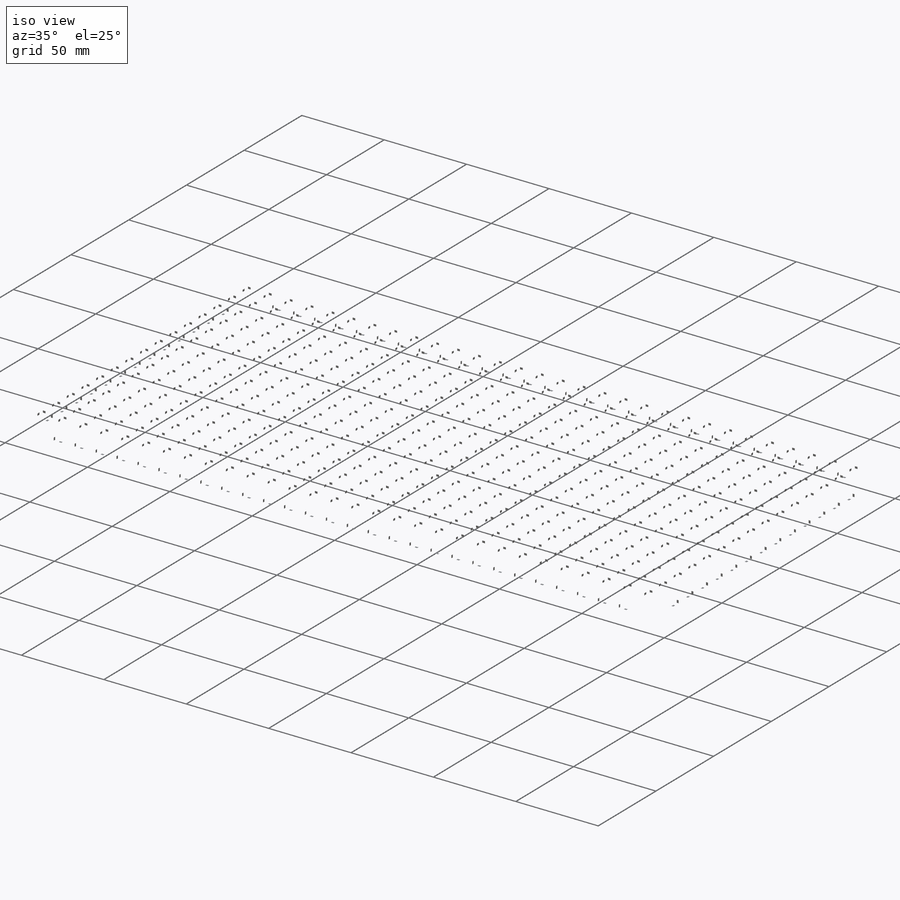
[diagram: iso view]
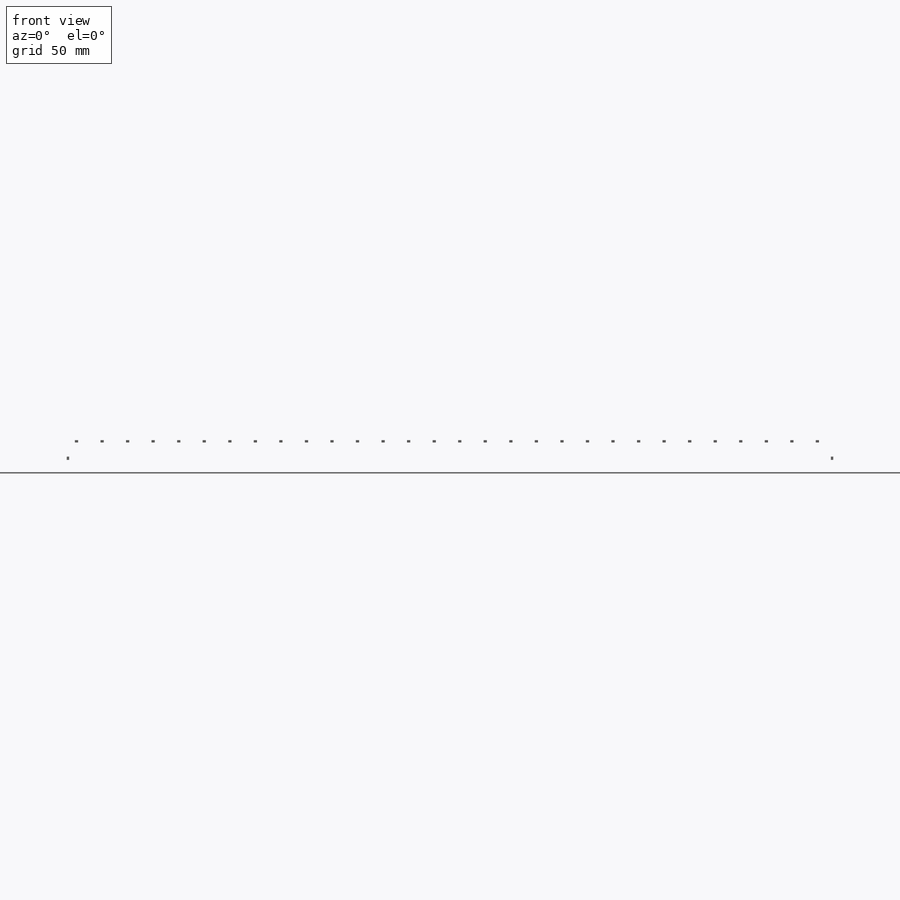
[diagram: front view]
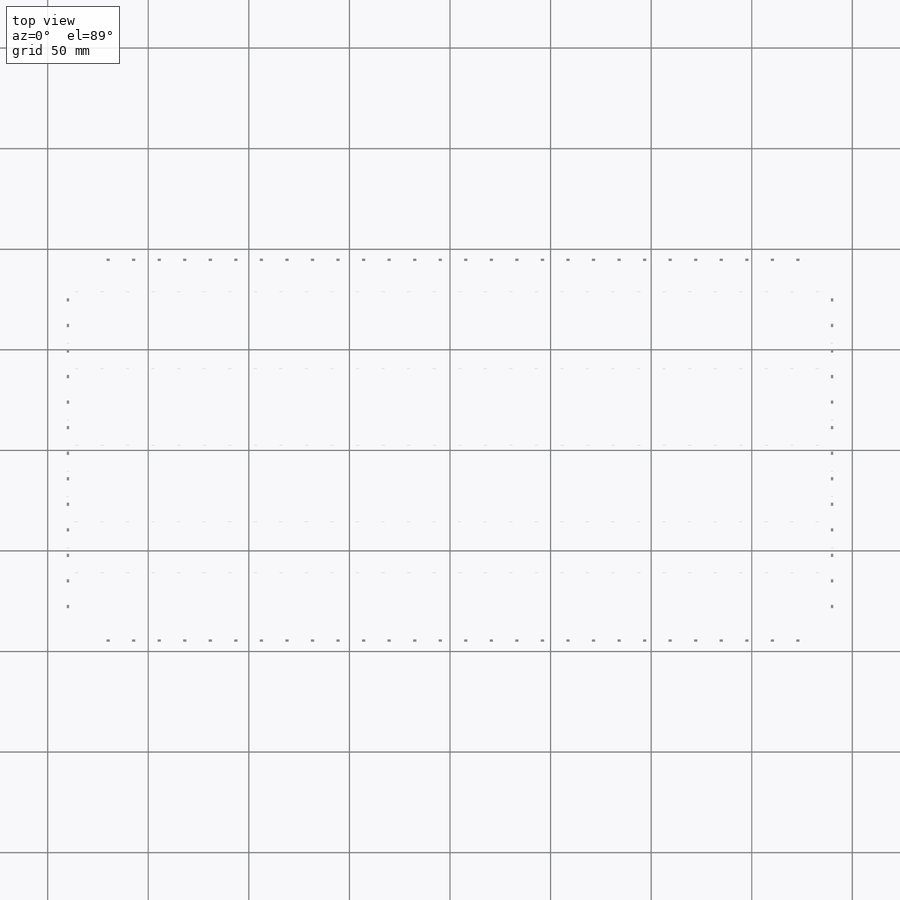
[diagram: top view]
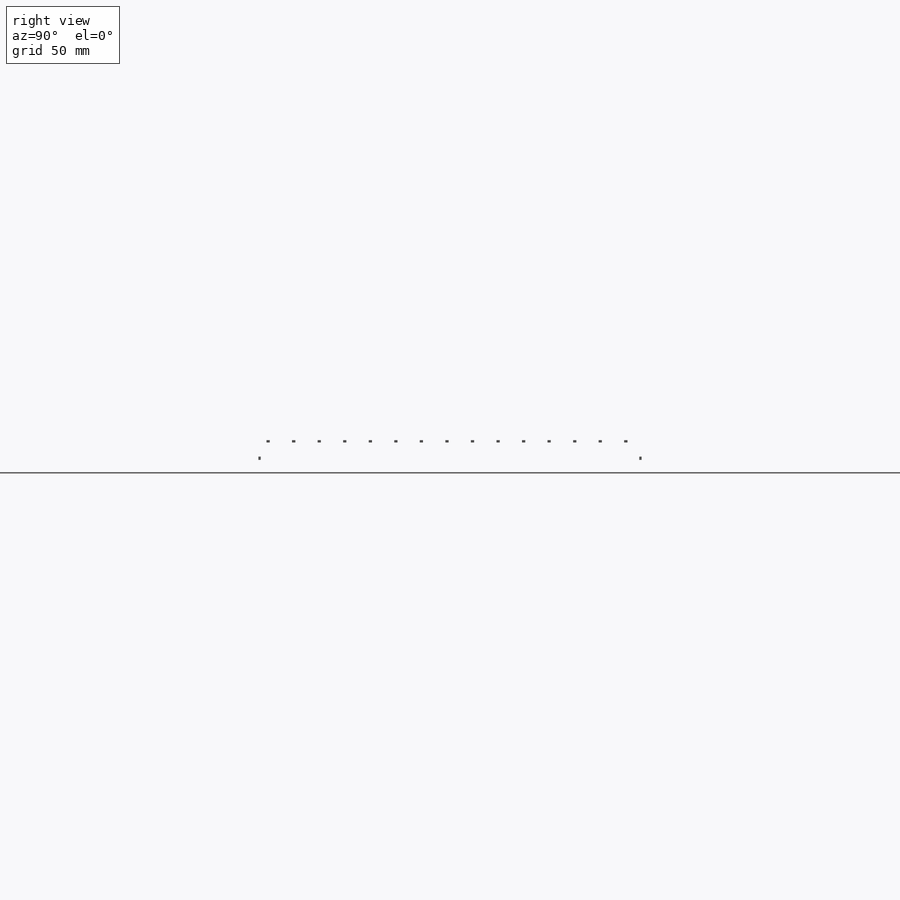
[diagram: right view]
SOLIDWORKS PART (.sldprt)
format: sldprt  version: not decoded by parser v0  size: 12,146,176 bytes
history: native  units: mm
features: sketch x541, cut_extrude x536, extrude x5, fillet x3, pattern_linear x3, material x1, plane x1, chamfer x1 (+13 scaffold rows collapsed)
feature tree (1104):
  scaffold x13  (default folders/planes/origin — collapsed)
  material  "Material <not specified>"
  plane  "Plane1"  Offset=1.1684mm
  sketch  "Sketch1"
  extrude  "Boss-Extrude1"  Depth=13.8684mm
  sketch  "Sketch2"
  cut_extrude  "Cut-Extrude1"  Depth=373.8626mm
  sketch  "Sketch3"
  extrude  "Boss-Extrude2"  Depth=3.5687mm
  sketch  "Sketch4"
  extrude  "Boss-Extrude3"  Depth=12.7mm
  sketch  "Sketch5"
  extrude  "Boss-Extrude4"  Depth=3.5687mm
  sketch  "Sketch6"
  extrude  "Boss-Extrude5"  Depth=12.7mm
  sketch  "Sketch7"
  cut_extrude  "Cut-Extrude2"  Depth=1.1684mm
  sketch  "Sketch8"
  cut_extrude  "Cut-Extrude3"  Depth=1.1684mm
  sketch  "Sketch9"
  cut_extrude  "Cut-Extrude4"  Depth=1.1684mm
  sketch  "Sketch10"
  cut_extrude  "Cut-Extrude5"  Depth=1.1684mm
  sketch  "Sketch11"
  cut_extrude  "Cut-Extrude6"  Depth=1.1684mm
  sketch  "Sketch12"
  cut_extrude  "Cut-Extrude7"  Depth=1.1684mm
  sketch  "Sketch13"
  cut_extrude  "Cut-Extrude8"  Depth=1.1684mm
  sketch  "Sketch14"
  cut_extrude  "Cut-Extrude9"  Depth=1.1684mm
  sketch  "Sketch15"
  cut_extrude  "Cut-Extrude10"  Depth=1.1684mm
  sketch  "Sketch16"
  cut_extrude  "Cut-Extrude11"  Depth=1.1684mm
  sketch  "Sketch17"
  cut_extrude  "Cut-Extrude12"  Depth=1.1684mm
  sketch  "Sketch18"
  cut_extrude  "Cut-Extrude13"  Depth=1.1684mm
  sketch  "Sketch19"
  cut_extrude  "Cut-Extrude14"  Depth=1.1684mm
  sketch  "Sketch20"
  cut_extrude  "Cut-Extrude15"  Depth=1.1684mm
  sketch  "Sketch21"
  cut_extrude  "Cut-Extrude16"  Depth=1.1684mm
  sketch  "Sketch22"
  cut_extrude  "Cut-Extrude17"  Depth=1.1684mm
  sketch  "Sketch23"
  cut_extrude  "Cut-Extrude18"  Depth=1.1684mm
  sketch  "Sketch24"
  cut_extrude  "Cut-Extrude19"  Depth=1.1684mm
  sketch  "Sketch25"
  cut_extrude  "Cut-Extrude20"  Depth=1.1684mm
  sketch  "Sketch26"
  cut_extrude  "Cut-Extrude21"  Depth=1.1684mm
  sketch  "Sketch27"
  cut_extrude  "Cut-Extrude22"  Depth=1.1684mm
  sketch  "Sketch28"
  cut_extrude  "Cut-Extrude23"  Depth=1.1684mm
  sketch  "Sketch29"
  cut_extrude  "Cut-Extrude24"  Depth=1.1684mm
  sketch  "Sketch30"
  cut_extrude  "Cut-Extrude25"  Depth=1.1684mm
  sketch  "Sketch31"
  cut_extrude  "Cut-Extrude26"  Depth=1.1684mm
  sketch  "Sketch32"
  cut_extrude  "Cut-Extrude27"  Depth=1.1684mm
  sketch  "Sketch33"
  cut_extrude  "Cut-Extrude28"  Depth=1.1684mm
  sketch  "Sketch34"
  cut_extrude  "Cut-Extrude29"  Depth=1.1684mm
  sketch  "Sketch35"
  cut_extrude  "Cut-Extrude30"  Depth=1.1684mm
  sketch  "Sketch36"
  cut_extrude  "Cut-Extrude31"  Depth=1.1684mm
  sketch  "Sketch37"
  cut_extrude  "Cut-Extrude32"  Depth=1.1684mm
  sketch  "Sketch38"
  cut_extrude  "Cut-Extrude33"  Depth=1.1684mm
  sketch  "Sketch39"
  cut_extrude  "Cut-Extrude34"  Depth=1.1684mm
  sketch  "Sketch40"
  cut_extrude  "Cut-Extrude35"  Depth=1.1684mm
  sketch  "Sketch41"
  cut_extrude  "Cut-Extrude36"  Depth=1.1684mm
  sketch  "Sketch42"
  cut_extrude  "Cut-Extrude37"  Depth=1.1684mm
  sketch  "Sketch43"
  cut_extrude  "Cut-Extrude38"  Depth=1.1684mm
  sketch  "Sketch44"
  cut_extrude  "Cut-Extrude39"  Depth=1.1684mm
  sketch  "Sketch45"
  cut_extrude  "Cut-Extrude40"  Depth=1.1684mm
  sketch  "Sketch46"
  cut_extrude  "Cut-Extrude41"  Depth=1.1684mm
  sketch  "Sketch47"
  cut_extrude  "Cut-Extrude42"  Depth=1.1684mm
  sketch  "Sketch48"
  cut_extrude  "Cut-Extrude43"  Depth=1.1684mm
  sketch  "Sketch49"
  cut_extrude  "Cut-Extrude44"  Depth=1.1684mm
  sketch  "Sketch50"
  cut_extrude  "Cut-Extrude45"  Depth=1.1684mm
  sketch  "Sketch51"
  cut_extrude  "Cut-Extrude46"  Depth=1.1684mm
  sketch  "Sketch52"
  cut_extrude  "Cut-Extrude47"  Depth=1.1684mm
  sketch  "Sketch53"
  cut_extrude  "Cut-Extrude48"  Depth=1.1684mm
  sketch  "Sketch54"
  cut_extrude  "Cut-Extrude49"  Depth=1.1684mm
  sketch  "Sketch55"
  cut_extrude  "Cut-Extrude50"  Depth=1.1684mm
  sketch  "Sketch56"
  cut_extrude  "Cut-Extrude51"  Depth=1.1684mm
  sketch  "Sketch57"
  cut_extrude  "Cut-Extrude52"  Depth=1.1684mm
  sketch  "Sketch58"
  cut_extrude  "Cut-Extrude53"  Depth=1.1684mm
  sketch  "Sketch59"
  cut_extrude  "Cut-Extrude54"  Depth=1.1684mm
  sketch  "Sketch60"
  cut_extrude  "Cut-Extrude55"  Depth=1.1684mm
  sketch  "Sketch61"
  cut_extrude  "Cut-Extrude56"  Depth=1.1684mm
  sketch  "Sketch62"
  cut_extrude  "Cut-Extrude57"  Depth=1.1684mm
  sketch  "Sketch63"
  cut_extrude  "Cut-Extrude58"  Depth=1.1684mm
  sketch  "Sketch64"
  cut_extrude  "Cut-Extrude59"  Depth=1.1684mm
  sketch  "Sketch65"
  cut_extrude  "Cut-Extrude60"  Depth=1.1684mm
  sketch  "Sketch66"
  cut_extrude  "Cut-Extrude61"  Depth=1.1684mm
  sketch  "Sketch67"
  cut_extrude  "Cut-Extrude62"  Depth=1.1684mm
  sketch  "Sketch68"
  cut_extrude  "Cut-Extrude63"  Depth=1.1684mm
  sketch  "Sketch69"
  cut_extrude  "Cut-Extrude64"  Depth=1.1684mm
  sketch  "Sketch70"
  cut_extrude  "Cut-Extrude65"  Depth=1.1684mm
  sketch  "Sketch71"
  cut_extrude  "Cut-Extrude66"  Depth=1.1684mm
  sketch  "Sketch72"
  cut_extrude  "Cut-Extrude67"  Depth=1.1684mm
  sketch  "Sketch73"
  cut_extrude  "Cut-Extrude68"  Depth=1.1684mm
  sketch  "Sketch74"
  cut_extrude  "Cut-Extrude69"  Depth=1.1684mm
  sketch  "Sketch75"
  cut_extrude  "Cut-Extrude70"  Depth=1.1684mm
  sketch  "Sketch76"
  cut_extrude  "Cut-Extrude71"  Depth=1.1684mm
  sketch  "Sketch77"
  cut_extrude  "Cut-Extrude72"  Depth=1.1684mm
  sketch  "Sketch78"
  cut_extrude  "Cut-Extrude73"  Depth=1.1684mm
  sketch  "Sketch79"
  cut_extrude  "Cut-Extrude74"  Depth=1.1684mm
  sketch  "Sketch80"
  cut_extrude  "Cut-Extrude75"  Depth=1.1684mm
  sketch  "Sketch81"
  cut_extrude  "Cut-Extrude76"  Depth=1.1684mm
  sketch  "Sketch82"
  cut_extrude  "Cut-Extrude77"  Depth=1.1684mm
  sketch  "Sketch83"
  cut_extrude  "Cut-Extrude78"  Depth=1.1684mm
  sketch  "Sketch84"
  cut_extrude  "Cut-Extrude79"  Depth=1.1684mm
  sketch  "Sketch85"
  cut_extrude  "Cut-Extrude80"  Depth=1.1684mm
  sketch  "Sketch86"
  cut_extrude  "Cut-Extrude81"  Depth=1.1684mm
  sketch  "Sketch87"
  cut_extrude  "Cut-Extrude82"  Depth=1.1684mm
  sketch  "Sketch88"
  cut_extrude  "Cut-Extrude83"  Depth=1.1684mm
  sketch  "Sketch89"
  cut_extrude  "Cut-Extrude84"  Depth=1.1684mm
  sketch  "Sketch90"
  cut_extrude  "Cut-Extrude85"  Depth=1.1684mm
  sketch  "Sketch91"
  cut_extrude  "Cut-Extrude86"  Depth=1.1684mm
  sketch  "Sketch92"
  cut_extrude  "Cut-Extrude87"  Depth=1.1684mm
  sketch  "Sketch93"
  cut_extrude  "Cut-Extrude88"  Depth=1.1684mm
  sketch  "Sketch94"
  cut_extrude  "Cut-Extrude89"  Depth=1.1684mm
  sketch  "Sketch95"
  cut_extrude  "Cut-Extrude90"  Depth=1.1684mm
  sketch  "Sketch96"
  cut_extrude  "Cut-Extrude91"  Depth=1.1684mm
  sketch  "Sketch97"
  cut_extrude  "Cut-Extrude92"  Depth=1.1684mm
  sketch  "Sketch98"
  cut_extrude  "Cut-Extrude93"  Depth=1.1684mm
  sketch  "Sketch99"
  cut_extrude  "Cut-Extrude94"  Depth=1.1684mm
  sketch  "Sketch100"
  cut_extrude  "Cut-Extrude95"  Depth=1.1684mm
  sketch  "Sketch101"
  cut_extrude  "Cut-Extrude96"  Depth=1.1684mm
  sketch  "Sketch102"
  cut_extrude  "Cut-Extrude97"  Depth=1.1684mm
  sketch  "Sketch103"
  cut_extrude  "Cut-Extrude98"  Depth=1.1684mm
  sketch  "Sketch104"
  cut_extrude  "Cut-Extrude99"  Depth=1.1684mm
  sketch  "Sketch105"
  cut_extrude  "Cut-Extrude100"  Depth=1.1684mm
  sketch  "Sketch106"
  cut_extrude  "Cut-Extrude101"  Depth=1.1684mm
  sketch  "Sketch107"
  cut_extrude  "Cut-Extrude102"  Depth=1.1684mm
  sketch  "Sketch108"
  cut_extrude  "Cut-Extrude103"  Depth=1.1684mm
  sketch  "Sketch109"
  cut_extrude  "Cut-Extrude104"  Depth=1.1684mm
  sketch  "Sketch110"
  cut_extrude  "Cut-Extrude105"  Depth=1.1684mm
  sketch  "Sketch111"
  cut_extrude  "Cut-Extrude106"  Depth=1.1684mm
  sketch  "Sketch112"
  cut_extrude  "Cut-Extrude107"  Depth=1.1684mm
  sketch  "Sketch113"
  cut_extrude  "Cut-Extrude108"  Depth=1.1684mm
  sketch  "Sketch114"
  cut_extrude  "Cut-Extrude109"  Depth=1.1684mm
  sketch  "Sketch115"
  cut_extrude  "Cut-Extrude110"  Depth=1.1684mm
  sketch  "Sketch116"
  cut_extrude  "Cut-Extrude111"  Depth=1.1684mm
  sketch  "Sketch117"
  cut_extrude  "Cut-Extrude112"  Depth=1.1684mm
  sketch  "Sketch118"
  cut_extrude  "Cut-Extrude113"  Depth=1.1684mm
  sketch  "Sketch119"
  cut_extrude  "Cut-Extrude114"  Depth=1.1684mm
  sketch  "Sketch120"
  cut_extrude  "Cut-Extrude115"  Depth=1.1684mm
  sketch  "Sketch121"
  cut_extrude  "Cut-Extrude116"  Depth=1.1684mm
  sketch  "Sketch122"
  cut_extrude  "Cut-Extrude117"  Depth=1.1684mm
  sketch  "Sketch123"
  cut_extrude  "Cut-Extrude118"  Depth=1.1684mm
  sketch  "Sketch124"
  cut_extrude  "Cut-Extrude119"  Depth=1.1684mm
  sketch  "Sketch125"
  cut_extrude  "Cut-Extrude120"  Depth=1.1684mm
  sketch  "Sketch126"
  cut_extrude  "Cut-Extrude121"  Depth=1.1684mm
  sketch  "Sketch127"
  cut_extrude  "Cut-Extrude122"  Depth=1.1684mm
  sketch  "Sketch128"
  cut_extrude  "Cut-Extrude123"  Depth=1.1684mm
  sketch  "Sketch129"
  cut_extrude  "Cut-Extrude124"  Depth=1.1684mm
  sketch  "Sketch130"
  cut_extrude  "Cut-Extrude125"  Depth=1.1684mm
  sketch  "Sketch131"
  cut_extrude  "Cut-Extrude126"  Depth=1.1684mm
  sketch  "Sketch132"
  cut_extrude  "Cut-Extrude127"  Depth=1.1684mm
  sketch  "Sketch133"
  cut_extrude  "Cut-Extrude128"  Depth=1.1684mm
  sketch  "Sketch134"
  cut_extrude  "Cut-Extrude129"  Depth=1.1684mm
  sketch  "Sketch135"
  cut_extrude  "Cut-Extrude130"  Depth=1.1684mm
  sketch  "Sketch136"
  cut_extrude  "Cut-Extrude131"  Depth=1.1684mm
  sketch  "Sketch137"
  cut_extrude  "Cut-Extrude132"  Depth=1.1684mm
  sketch  "Sketch138"
  cut_extrude  "Cut-Extrude133"  Depth=1.1684mm
  sketch  "Sketch139"
  cut_extrude  "Cut-Extrude134"  Depth=1.1684mm
  sketch  "Sketch140"
  cut_extrude  "Cut-Extrude135"  Depth=1.1684mm
  sketch  "Sketch141"
  cut_extrude  "Cut-Extrude136"  Depth=1.1684mm
  sketch  "Sketch142"
  cut_extrude  "Cut-Extrude137"  Depth=1.1684mm
  sketch  "Sketch143"
  cut_extrude  "Cut-Extrude138"  Depth=1.1684mm
  sketch  "Sketch144"
  cut_extrude  "Cut-Extrude139"  Depth=1.1684mm
  sketch  "Sketch145"
  cut_extrude  "Cut-Extrude140"  Depth=1.1684mm
  sketch  "Sketch146"
  cut_extrude  "Cut-Extrude141"  Depth=1.1684mm
  sketch  "Sketch147"
  cut_extrude  "Cut-Extrude142"  Depth=1.1684mm
  sketch  "Sketch148"
  cut_extrude  "Cut-Extrude143"  Depth=1.1684mm
  sketch  "Sketch149"
  cut_extrude  "Cut-Extrude144"  Depth=1.1684mm
  sketch  "Sketch150"
  cut_extrude  "Cut-Extrude145"  Depth=1.1684mm
  sketch  "Sketch151"
  cut_extrude  "Cut-Extrude146"  Depth=1.1684mm
  sketch  "Sketch152"
  cut_extrude  "Cut-Extrude147"  Depth=1.1684mm
  sketch  "Sketch153"
  cut_extrude  "Cut-Extrude148"  Depth=1.1684mm
  sketch  "Sketch154"
  cut_extrude  "Cut-Extrude149"  Depth=1.1684mm
  sketch  "Sketch155"
  cut_extrude  "Cut-Extrude150"  Depth=1.1684mm
  sketch  "Sketch156"
  cut_extrude  "Cut-Extrude151"  Depth=1.1684mm
  sketch  "Sketch157"
  cut_extrude  "Cut-Extrude152"  Depth=1.1684mm
  sketch  "Sketch158"
  cut_extrude  "Cut-Extrude153"  Depth=1.1684mm
  sketch  "Sketch159"
  cut_extrude  "Cut-Extrude154"  Depth=1.1684mm
  sketch  "Sketch160"
  cut_extrude  "Cut-Extrude155"  Depth=1.1684mm
  sketch  "Sketch161"
  cut_extrude  "Cut-Extrude156"  Depth=1.1684mm
  sketch  "Sketch162"
  cut_extrude  "Cut-Extrude157"  Depth=1.1684mm
  sketch  "Sketch163"
  cut_extrude  "Cut-Extrude158"  Depth=1.1684mm
  sketch  "Sketch164"
  cut_extrude  "Cut-Extrude159"  Depth=1.1684mm
  sketch  "Sketch165"
  cut_extrude  "Cut-Extrude160"  Depth=1.1684mm
  sketch  "Sketch166"
  cut_extrude  "Cut-Extrude161"  Depth=1.1684mm
  sketch  "Sketch167"
  cut_extrude  "Cut-Extrude162"  Depth=1.1684mm
  sketch  "Sketch168"
  cut_extrude  "Cut-Extrude163"  Depth=1.1684mm
  sketch  "Sketch169"
  cut_extrude  "Cut-Extrude164"  Depth=1.1684mm
  sketch  "Sketch170"
  cut_extrude  "Cut-Extrude165"  Depth=1.1684mm
  sketch  "Sketch171"
  cut_extrude  "Cut-Extrude166"  Depth=1.1684mm
  sketch  "Sketch172"
  cut_extrude  "Cut-Extrude167"  Depth=1.1684mm
  sketch  "Sketch173"
  cut_extrude  "Cut-Extrude168"  Depth=1.1684mm
  sketch  "Sketch174"
  cut_extrude  "Cut-Extrude169"  Depth=1.1684mm
  sketch  "Sketch175"
  cut_extrude  "Cut-Extrude170"  Depth=1.1684mm
  sketch  "Sketch176"
  cut_extrude  "Cut-Extrude171"  Depth=1.1684mm
  sketch  "Sketch177"
  cut_extrude  "Cut-Extrude172"  Depth=1.1684mm
  sketch  "Sketch178"
  cut_extrude  "Cut-Extrude173"  Depth=1.1684mm
  sketch  "Sketch179"
  cut_extrude  "Cut-Extrude174"  Depth=1.1684mm
  sketch  "Sketch180"
  cut_extrude  "Cut-Extrude175"  Depth=1.1684mm
  sketch  "Sketch181"
  cut_extrude  "Cut-Extrude176"  Depth=1.1684mm
  sketch  "Sketch182"
  cut_extrude  "Cut-Extrude177"  Depth=1.1684mm
  sketch  "Sketch183"
  cut_extrude  "Cut-Extrude178"  Depth=1.1684mm
  sketch  "Sketch184"
  cut_extrude  "Cut-Extrude179"  Depth=1.1684mm
  sketch  "Sketch185"
  cut_extrude  "Cut-Extrude180"  Depth=1.1684mm
  sketch  "Sketch186"
  cut_extrude  "Cut-Extrude181"  Depth=1.1684mm
  sketch  "Sketch187"
  cut_extrude  "Cut-Extrude182"  Depth=1.1684mm
  sketch  "Sketch188"
  cut_extrude  "Cut-Extrude183"  Depth=1.1684mm
  sketch  "Sketch189"
  cut_extrude  "Cut-Extrude184"  Depth=1.1684mm
  sketch  "Sketch190"
  cut_extrude  "Cut-Extrude185"  Depth=1.1684mm
  sketch  "Sketch191"
  cut_extrude  "Cut-Extrude186"  Depth=1.1684mm
  sketch  "Sketch192"
  cut_extrude  "Cut-Extrude187"  Depth=1.1684mm
  sketch  "Sketch193"
  cut_extrude  "Cut-Extrude188"  Depth=1.1684mm
  sketch  "Sketch194"
  cut_extrude  "Cut-Extrude189"  Depth=1.1684mm
  sketch  "Sketch195"
  cut_extrude  "Cut-Extrude190"  Depth=1.1684mm
  sketch  "Sketch196"
  cut_extrude  "Cut-Extrude191"  Depth=1.1684mm
  sketch  "Sketch197"
  cut_extrude  "Cut-Extrude192"  Depth=1.1684mm
  sketch  "Sketch198"
  cut_extrude  "Cut-Extrude193"  Depth=1.1684mm
  sketch  "Sketch199"
  cut_extrude  "Cut-Extrude194"  Depth=1.1684mm
  sketch  "Sketch200"
  cut_extrude  "Cut-Extrude195"  Depth=1.1684mm
  sketch  "Sketch201"
  cut_extrude  "Cut-Extrude196"  Depth=1.1684mm
  sketch  "Sketch202"
  cut_extrude  "Cut-Extrude197"  Depth=1.1684mm
  sketch  "Sketch203"
  cut_extrude  "Cut-Extrude198"  Depth=1.1684mm
  sketch  "Sketch204"
  cut_extrude  "Cut-Extrude199"  Depth=1.1684mm
  sketch  "Sketch205"
  cut_extrude  "Cut-Extrude200"  Depth=1.1684mm
  sketch  "Sketch206"
  cut_extrude  "Cut-Extrude201"  Depth=1.1684mm
  sketch  "Sketch207"
  cut_extrude  "Cut-Extrude202"  Depth=1.1684mm
  sketch  "Sketch208"
  cut_extrude  "Cut-Extrude203"  Depth=1.1684mm
  sketch  "Sketch209"
  cut_extrude  "Cut-Extrude204"  Depth=1.1684mm
  sketch  "Sketch210"
  cut_extrude  "Cut-Extrude205"  Depth=1.1684mm
  sketch  "Sketch211"
  cut_extrude  "Cut-Extrude206"  Depth=1.1684mm
  sketch  "Sketch212"
  cut_extrude  "Cut-Extrude207"  Depth=1.1684mm
  sketch  "Sketch213"
  cut_extrude  "Cut-Extrude208"  Depth=1.1684mm
  sketch  "Sketch214"
  cut_extrude  "Cut-Extrude209"  Depth=1.1684mm
  sketch  "Sketch215"
  cut_extrude  "Cut-Extrude210"  Depth=1.1684mm
  sketch  "Sketch216"
  cut_extrude  "Cut-Extrude211"  Depth=1.1684mm
  sketch  "Sketch217"
  cut_extrude  "Cut-Extrude212"  Depth=1.1684mm
  sketch  "Sketch218"
  cut_extrude  "Cut-Extrude213"  Depth=1.1684mm
  sketch  "Sketch219"
  cut_extrude  "Cut-Extrude214"  Depth=1.1684mm
  sketch  "Sketch220"
  cut_extrude  "Cut-Extrude215"  Depth=1.1684mm
  sketch  "Sketch221"
  cut_extrude  "Cut-Extrude216"  Depth=1.1684mm
  sketch  "Sketch222"
  cut_extrude  "Cut-Extrude217"  Depth=1.1684mm
  sketch  "Sketch223"
  cut_extrude  "Cut-Extrude218"  Depth=1.1684mm
  sketch  "Sketch224"
  cut_extrude  "Cut-Extrude219"  Depth=1.1684mm
  sketch  "Sketch225"
  cut_extrude  "Cut-Extrude220"  Depth=1.1684mm
  sketch  "Sketch226"
  cut_extrude  "Cut-Extrude221"  Depth=1.1684mm
  sketch  "Sketch227"
  cut_extrude  "Cut-Extrude222"  Depth=1.1684mm
  sketch  "Sketch228"
  cut_extrude  "Cut-Extrude223"  Depth=1.1684mm
  sketch  "Sketch229"
  cut_extrude  "Cut-Extrude224"  Depth=1.1684mm
  sketch  "Sketch230"
  cut_extrude  "Cut-Extrude225"  Depth=1.1684mm
  sketch  "Sketch231"
  cut_extrude  "Cut-Extrude226"  Depth=1.1684mm
  sketch  "Sketch232"
  cut_extrude  "Cut-Extrude227"  Depth=1.1684mm
  sketch  "Sketch233"
  cut_extrude  "Cut-Extrude228"  Depth=1.1684mm
  sketch  "Sketch234"
  cut_extrude  "Cut-Extrude229"  Depth=1.1684mm
  sketch  "Sketch235"
  cut_extrude  "Cut-Extrude230"  Depth=1.1684mm
  sketch  "Sketch236"
  cut_extrude  "Cut-Extrude231"  Depth=1.1684mm
  sketch  "Sketch237"
  cut_extrude  "Cut-Extrude232"  Depth=1.1684mm
  sketch  "Sketch238"
  cut_extrude  "Cut-Extrude233"  Depth=1.1684mm
  sketch  "Sketch239"
  cut_extrude  "Cut-Extrude234"  Depth=1.1684mm
  sketch  "Sketch240"
  cut_extrude  "Cut-Extrude235"  Depth=1.1684mm
  sketch  "Sketch241"
  cut_extrude  "Cut-Extrude236"  Depth=1.1684mm
  sketch  "Sketch242"
  cut_extrude  "Cut-Extrude237"  Depth=1.1684mm
  sketch  "Sketch243"
  cut_extrude  "Cut-Extrude238"  Depth=1.1684mm
  sketch  "Sketch244"
  cut_extrude  "Cut-Extrude239"  Depth=1.1684mm
  sketch  "Sketch245"
  cut_extrude  "Cut-Extrude240"  Depth=1.1684mm
  sketch  "Sketch246"
  cut_extrude  "Cut-Extrude241"  Depth=1.1684mm
  sketch  "Sketch247"
  cut_extrude  "Cut-Extrude242"  Depth=1.1684mm
  sketch  "Sketch248"
  cut_extrude  "Cut-Extrude243"  Depth=1.1684mm
  sketch  "Sketch249"
  cut_extrude  "Cut-Extrude244"  Depth=1.1684mm
  sketch  "Sketch250"
  cut_extrude  "Cut-Extrude245"  Depth=1.1684mm
  sketch  "Sketch251"
  cut_extrude  "Cut-Extrude246"  Depth=1.1684mm
  sketch  "Sketch252"
  cut_extrude  "Cut-Extrude247"  Depth=1.1684mm
  sketch  "Sketch253"
  cut_extrude  "Cut-Extrude248"  Depth=1.1684mm
  sketch  "Sketch254"
  cut_extrude  "Cut-Extrude249"  Depth=1.1684mm
  sketch  "Sketch255"
  cut_extrude  "Cut-Extrude250"  Depth=1.1684mm
  sketch  "Sketch256"
  cut_extrude  "Cut-Extrude251"  Depth=1.1684mm
  sketch  "Sketch257"
  cut_extrude  "Cut-Extrude252"  Depth=1.1684mm
  sketch  "Sketch258"
  cut_extrude  "Cut-Extrude253"  Depth=1.1684mm
  sketch  "Sketch259"
  cut_extrude  "Cut-Extrude254"  Depth=1.1684mm
  sketch  "Sketch260"
  cut_extrude  "Cut-Extrude255"  Depth=1.1684mm
  sketch  "Sketch261"
  cut_extrude  "Cut-Extrude256"  Depth=1.1684mm
  sketch  "Sketch262"
  cut_extrude  "Cut-Extrude257"  Depth=1.1684mm
  sketch  "Sketch263"
  cut_extrude  "Cut-Extrude258"  Depth=1.1684mm
  sketch  "Sketch264"
  cut_extrude  "Cut-Extrude259"  Depth=1.1684mm
  sketch  "Sketch265"
  cut_extrude  "Cut-Extrude260"  Depth=1.1684mm
  sketch  "Sketch266"
  cut_extrude  "Cut-Extrude261"  Depth=1.1684mm
  sketch  "Sketch267"
  cut_extrude  "Cut-Extrude262"  Depth=1.1684mm
  sketch  "Sketch268"
  cut_extrude  "Cut-Extrude263"  Depth=1.1684mm
  sketch  "Sketch269"
  cut_extrude  "Cut-Extrude264"  Depth=1.1684mm
  sketch  "Sketch270"
  cut_extrude  "Cut-Extrude265"  Depth=1.1684mm
  sketch  "Sketch271"
  cut_extrude  "Cut-Extrude266"  Depth=1.1684mm
  sketch  "Sketch272"
  cut_extrude  "Cut-Extrude267"  Depth=1.1684mm
  sketch  "Sketch273"
  cut_extrude  "Cut-Extrude268"  Depth=1.1684mm
  sketch  "Sketch274"
  cut_extrude  "Cut-Extrude269"  Depth=1.1684mm
  sketch  "Sketch275"
  cut_extrude  "Cut-Extrude270"  Depth=1.1684mm
  sketch  "Sketch276"
  cut_extrude  "Cut-Extrude271"  Depth=1.1684mm
  sketch  "Sketch277"
  cut_extrude  "Cut-Extrude272"  Depth=1.1684mm
  sketch  "Sketch278"
  cut_extrude  "Cut-Extrude273"  Depth=1.1684mm
  sketch  "Sketch279"
  cut_extrude  "Cut-Extrude274"  Depth=1.1684mm
  sketch  "Sketch280"
  cut_extrude  "Cut-Extrude275"  Depth=1.1684mm
  sketch  "Sketch281"
  cut_extrude  "Cut-Extrude276"  Depth=1.1684mm
  sketch  "Sketch282"
  cut_extrude  "Cut-Extrude277"  Depth=1.1684mm
  sketch  "Sketch283"
  cut_extrude  "Cut-Extrude278"  Depth=1.1684mm
  sketch  "Sketch284"
  cut_extrude  "Cut-Extrude279"  Depth=1.1684mm
  sketch  "Sketch285"
  cut_extrude  "Cut-Extrude280"  Depth=1.1684mm
  sketch  "Sketch286"
  cut_extrude  "Cut-Extrude281"  Depth=1.1684mm
  sketch  "Sketch287"
  cut_extrude  "Cut-Extrude282"  Depth=1.1684mm
  sketch  "Sketch288"
  cut_extrude  "Cut-Extrude283"  Depth=1.1684mm
  sketch  "Sketch289"
  cut_extrude  "Cut-Extrude284"  Depth=1.1684mm
  sketch  "Sketch290"
  cut_extrude  "Cut-Extrude285"  Depth=1.1684mm
  sketch  "Sketch291"
  cut_extrude  "Cut-Extrude286"  Depth=1.1684mm
  sketch  "Sketch292"
  cut_extrude  "Cut-Extrude287"  Depth=1.1684mm
  sketch  "Sketch293"
  cut_extrude  "Cut-Extrude288"  Depth=1.1684mm
  sketch  "Sketch294"
  cut_extrude  "Cut-Extrude289"  Depth=1.1684mm
  sketch  "Sketch295"
  cut_extrude  "Cut-Extrude290"  Depth=1.1684mm
  sketch  "Sketch296"
  cut_extrude  "Cut-Extrude291"  Depth=1.1684mm
  sketch  "Sketch297"
  cut_extrude  "Cut-Extrude292"  Depth=1.1684mm
  sketch  "Sketch298"
  cut_extrude  "Cut-Extrude293"  Depth=1.1684mm
  sketch  "Sketch299"
  cut_extrude  "Cut-Extrude294"  Depth=1.1684mm
  sketch  "Sketch300"
  cut_extrude  "Cut-Extrude295"  Depth=1.1684mm
  sketch  "Sketch301"
  cut_extrude  "Cut-Extrude296"  Depth=1.1684mm
  sketch  "Sketch302"
  cut_extrude  "Cut-Extrude297"  Depth=1.1684mm
  sketch  "Sketch303"
  cut_extrude  "Cut-Extrude298"  Depth=1.1684mm
  sketch  "Sketch304"
  cut_extrude  "Cut-Extrude299"  Depth=1.1684mm
  sketch  "Sketch305"
  cut_extrude  "Cut-Extrude300"  Depth=1.1684mm
  sketch  "Sketch306"
  cut_extrude  "Cut-Extrude301"  Depth=1.1684mm
  sketch  "Sketch307"
  cut_extrude  "Cut-Extrude302"  Depth=1.1684mm
  sketch  "Sketch308"
  cut_extrude  "Cut-Extrude303"  Depth=1.1684mm
  sketch  "Sketch309"
  cut_extrude  "Cut-Extrude304"  Depth=1.1684mm
  sketch  "Sketch310"
  cut_extrude  "Cut-Extrude305"  Depth=1.1684mm
  sketch  "Sketch311"
  cut_extrude  "Cut-Extrude306"  Depth=1.1684mm
  sketch  "Sketch312"
  cut_extrude  "Cut-Extrude307"  Depth=1.1684mm
  sketch  "Sketch313"
  cut_extrude  "Cut-Extrude308"  Depth=1.1684mm
  sketch  "Sketch314"
  cut_extrude  "Cut-Extrude309"  Depth=1.1684mm
  sketch  "Sketch315"
  cut_extrude  "Cut-Extrude310"  Depth=1.1684mm
  sketch  "Sketch316"
  cut_extrude  "Cut-Extrude311"  Depth=1.1684mm
  sketch  "Sketch317"
  cut_extrude  "Cut-Extrude312"  Depth=1.1684mm
  sketch  "Sketch318"
  cut_extrude  "Cut-Extrude313"  Depth=1.1684mm
  sketch  "Sketch319"
  cut_extrude  "Cut-Extrude314"  Depth=1.1684mm
  sketch  "Sketch320"
  cut_extrude  "Cut-Extrude315"  Depth=1.1684mm
  sketch  "Sketch321"
  cut_extrude  "Cut-Extrude316"  Depth=1.1684mm
  sketch  "Sketch322"
  cut_extrude  "Cut-Extrude317"  Depth=1.1684mm
  sketch  "Sketch323"
  cut_extrude  "Cut-Extrude318"  Depth=1.1684mm
  sketch  "Sketch324"
  cut_extrude  "Cut-Extrude319"  Depth=1.1684mm
  sketch  "Sketch325"
  cut_extrude  "Cut-Extrude320"  Depth=1.1684mm
  sketch  "Sketch326"
  cut_extrude  "Cut-Extrude321"  Depth=1.1684mm
  sketch  "Sketch327"
  cut_extrude  "Cut-Extrude322"  Depth=1.1684mm
  sketch  "Sketch328"
  cut_extrude  "Cut-Extrude323"  Depth=1.1684mm
  sketch  "Sketch329"
  cut_extrude  "Cut-Extrude324"  Depth=1.1684mm
  sketch  "Sketch330"
  cut_extrude  "Cut-Extrude325"  Depth=1.1684mm
  sketch  "Sketch331"
  cut_extrude  "Cut-Extrude326"  Depth=1.1684mm
  sketch  "Sketch332"
  cut_extrude  "Cut-Extrude327"  Depth=1.1684mm
  sketch  "Sketch333"
  cut_extrude  "Cut-Extrude328"  Depth=1.1684mm
  sketch  "Sketch334"
  cut_extrude  "Cut-Extrude329"  Depth=1.1684mm
  sketch  "Sketch335"
  cut_extrude  "Cut-Extrude330"  Depth=1.1684mm
  sketch  "Sketch336"
  cut_extrude  "Cut-Extrude331"  Depth=1.1684mm
  sketch  "Sketch337"
  cut_extrude  "Cut-Extrude332"  Depth=1.1684mm
  sketch  "Sketch338"
  cut_extrude  "Cut-Extrude333"  Depth=1.1684mm
  sketch  "Sketch339"
  cut_extrude  "Cut-Extrude334"  Depth=1.1684mm
  sketch  "Sketch340"
  cut_extrude  "Cut-Extrude335"  Depth=1.1684mm
  sketch  "Sketch341"
  cut_extrude  "Cut-Extrude336"  Depth=1.1684mm
  sketch  "Sketch342"
  cut_extrude  "Cut-Extrude337"  Depth=1.1684mm
  sketch  "Sketch343"
  cut_extrude  "Cut-Extrude338"  Depth=1.1684mm
  sketch  "Sketch344"
  cut_extrude  "Cut-Extrude339"  Depth=1.1684mm
  sketch  "Sketch345"
  cut_extrude  "Cut-Extrude340"  Depth=1.1684mm
  sketch  "Sketch346"
  cut_extrude  "Cut-Extrude341"  Depth=1.1684mm
  sketch  "Sketch347"
  cut_extrude  "Cut-Extrude342"  Depth=1.1684mm
  sketch  "Sketch348"
  cut_extrude  "Cut-Extrude343"  Depth=1.1684mm
  sketch  "Sketch349"
  cut_extrude  "Cut-Extrude344"  Depth=1.1684mm
  sketch  "Sketch350"
  cut_extrude  "Cut-Extrude345"  Depth=1.1684mm
  sketch  "Sketch351"
  cut_extrude  "Cut-Extrude346"  Depth=1.1684mm
  sketch  "Sketch352"
  cut_extrude  "Cut-Extrude347"  Depth=1.1684mm
  sketch  "Sketch353"
  cut_extrude  "Cut-Extrude348"  Depth=1.1684mm
  sketch  "Sketch354"
  cut_extrude  "Cut-Extrude349"  Depth=1.1684mm
  sketch  "Sketch355"
  cut_extrude  "Cut-Extrude350"  Depth=1.1684mm
  sketch  "Sketch356"
  cut_extrude  "Cut-Extrude351"  Depth=1.1684mm
  sketch  "Sketch357"
  cut_extrude  "Cut-Extrude352"  Depth=1.1684mm
  sketch  "Sketch358"
  cut_extrude  "Cut-Extrude353"  Depth=1.1684mm
  sketch  "Sketch359"
  cut_extrude  "Cut-Extrude354"  Depth=1.1684mm
  sketch  "Sketch360"
  cut_extrude  "Cut-Extrude355"  Depth=1.1684mm
  sketch  "Sketch361"
  cut_extrude  "Cut-Extrude356"  Depth=1.1684mm
  sketch  "Sketch362"
  cut_extrude  "Cut-Extrude357"  Depth=1.1684mm
  sketch  "Sketch363"
  cut_extrude  "Cut-Extrude358"  Depth=1.1684mm
  sketch  "Sketch364"
  cut_extrude  "Cut-Extrude359"  Depth=1.1684mm
  sketch  "Sketch365"
  cut_extrude  "Cut-Extrude360"  Depth=1.1684mm
  sketch  "Sketch366"
  cut_extrude  "Cut-Extrude361"  Depth=1.1684mm
  sketch  "Sketch367"
  cut_extrude  "Cut-Extrude362"  Depth=1.1684mm
  sketch  "Sketch368"
  cut_extrude  "Cut-Extrude363"  Depth=1.1684mm
  sketch  "Sketch369"
  cut_extrude  "Cut-Extrude364"  Depth=1.1684mm
  sketch  "Sketch370"
  cut_extrude  "Cut-Extrude365"  Depth=1.1684mm
  sketch  "Sketch371"
  cut_extrude  "Cut-Extrude366"  Depth=1.1684mm
  sketch  "Sketch372"
  cut_extrude  "Cut-Extrude367"  Depth=1.1684mm
  sketch  "Sketch373"
  cut_extrude  "Cut-Extrude368"  Depth=1.1684mm
  sketch  "Sketch374"
  cut_extrude  "Cut-Extrude369"  Depth=1.1684mm
  sketch  "Sketch375"
  cut_extrude  "Cut-Extrude370"  Depth=1.1684mm
  sketch  "Sketch376"
  cut_extrude  "Cut-Extrude371"  Depth=1.1684mm
  sketch  "Sketch377"
  cut_extrude  "Cut-Extrude372"  Depth=1.1684mm
  sketch  "Sketch378"
  cut_extrude  "Cut-Extrude373"  Depth=1.1684mm
  sketch  "Sketch379"
  cut_extrude  "Cut-Extrude374"  Depth=1.1684mm
  sketch  "Sketch380"
  cut_extrude  "Cut-Extrude375"  Depth=1.1684mm
  sketch  "Sketch381"
  cut_extrude  "Cut-Extrude376"  Depth=1.1684mm
  sketch  "Sketch382"
  cut_extrude  "Cut-Extrude377"  Depth=1.1684mm
  sketch  "Sketch383"
  cut_extrude  "Cut-Extrude378"  Depth=1.1684mm
  sketch  "Sketch384"
  cut_extrude  "Cut-Extrude379"  Depth=1.1684mm
  sketch  "Sketch385"
  cut_extrude  "Cut-Extrude380"  Depth=1.1684mm
  sketch  "Sketch386"
  cut_extrude  "Cut-Extrude381"  Depth=1.1684mm
  sketch  "Sketch387"
  cut_extrude  "Cut-Extrude382"  Depth=1.1684mm
  sketch  "Sketch388"
  cut_extrude  "Cut-Extrude383"  Depth=1.1684mm
  sketch  "Sketch389"
  cut_extrude  "Cut-Extrude384"  Depth=1.1684mm
  sketch  "Sketch390"
  cut_extrude  "Cut-Extrude385"  Depth=1.1684mm
  sketch  "Sketch391"
  cut_extrude  "Cut-Extrude386"  Depth=1.1684mm
  sketch  "Sketch392"
  cut_extrude  "Cut-Extrude387"  Depth=1.1684mm
  sketch  "Sketch393"
  cut_extrude  "Cut-Extrude388"  Depth=1.1684mm
  sketch  "Sketch394"
  cut_extrude  "Cut-Extrude389"  Depth=1.1684mm
  sketch  "Sketch395"
  cut_extrude  "Cut-Extrude390"  Depth=1.1684mm
  sketch  "Sketch396"
  cut_extrude  "Cut-Extrude391"  Depth=1.1684mm
  sketch  "Sketch397"
  cut_extrude  "Cut-Extrude392"  Depth=1.1684mm
  sketch  "Sketch398"
  cut_extrude  "Cut-Extrude393"  Depth=1.1684mm
  sketch  "Sketch399"
  cut_extrude  "Cut-Extrude394"  Depth=1.1684mm
  sketch  "Sketch400"
  cut_extrude  "Cut-Extrude395"  Depth=1.1684mm
  sketch  "Sketch401"
  cut_extrude  "Cut-Extrude396"  Depth=1.1684mm
  sketch  "Sketch402"
  cut_extrude  "Cut-Extrude397"  Depth=1.1684mm
  sketch  "Sketch403"
  cut_extrude  "Cut-Extrude398"  Depth=1.1684mm
  sketch  "Sketch404"
  cut_extrude  "Cut-Extrude399"  Depth=1.1684mm
  sketch  "Sketch405"
  cut_extrude  "Cut-Extrude400"  Depth=1.1684mm
  sketch  "Sketch406"
  cut_extrude  "Cut-Extrude401"  Depth=1.1684mm
  sketch  "Sketch407"
  cut_extrude  "Cut-Extrude402"  Depth=1.1684mm
  sketch  "Sketch408"
  cut_extrude  "Cut-Extrude403"  Depth=1.1684mm
  sketch  "Sketch409"
  cut_extrude  "Cut-Extrude404"  Depth=1.1684mm
  sketch  "Sketch410"
  cut_extrude  "Cut-Extrude405"  Depth=1.1684mm
  sketch  "Sketch411"
  cut_extrude  "Cut-Extrude406"  Depth=1.1684mm
  sketch  "Sketch412"
  cut_extrude  "Cut-Extrude407"  Depth=1.1684mm
  sketch  "Sketch413"
  cut_extrude  "Cut-Extrude408"  Depth=1.1684mm
  sketch  "Sketch414"
  cut_extrude  "Cut-Extrude409"  Depth=1.1684mm
  sketch  "Sketch415"
  cut_extrude  "Cut-Extrude410"  Depth=1.1684mm
  sketch  "Sketch416"
  cut_extrude  "Cut-Extrude411"  Depth=1.1684mm
  sketch  "Sketch417"
  cut_extrude  "Cut-Extrude412"  Depth=1.1684mm
  sketch  "Sketch418"
  cut_extrude  "Cut-Extrude413"  Depth=1.1684mm
  sketch  "Sketch419"
  cut_extrude  "Cut-Extrude414"  Depth=1.1684mm
  sketch  "Sketch420"
  cut_extrude  "Cut-Extrude415"  Depth=1.1684mm
  sketch  "Sketch421"
  cut_extrude  "Cut-Extrude416"  Depth=1.1684mm
  sketch  "Sketch422"
  cut_extrude  "Cut-Extrude417"  Depth=1.1684mm
  sketch  "Sketch423"
  cut_extrude  "Cut-Extrude418"  Depth=1.1684mm
  sketch  "Sketch424"
  cut_extrude  "Cut-Extrude419"  Depth=1.1684mm
  sketch  "Sketch425"
  cut_extrude  "Cut-Extrude420"  Depth=1.1684mm
  sketch  "Sketch426"
  cut_extrude  "Cut-Extrude421"  Depth=1.1684mm
  sketch  "Sketch427"
  cut_extrude  "Cut-Extrude422"  Depth=1.1684mm
  sketch  "Sketch428"
  cut_extrude  "Cut-Extrude423"  Depth=1.1684mm
  sketch  "Sketch429"
  cut_extrude  "Cut-Extrude424"  Depth=1.1684mm
  sketch  "Sketch430"
  cut_extrude  "Cut-Extrude425"  Depth=1.1684mm
  sketch  "Sketch431"
  cut_extrude  "Cut-Extrude426"  Depth=1.1684mm
  sketch  "Sketch432"
  cut_extrude  "Cut-Extrude427"  Depth=1.1684mm
  sketch  "Sketch433"
  cut_extrude  "Cut-Extrude428"  Depth=1.1684mm
  sketch  "Sketch434"
  cut_extrude  "Cut-Extrude429"  Depth=1.1684mm
  sketch  "Sketch435"
  cut_extrude  "Cut-Extrude430"  Depth=1.1684mm
  sketch  "Sketch436"
  cut_extrude  "Cut-Extrude431"  Depth=1.1684mm
  sketch  "Sketch437"
  cut_extrude  "Cut-Extrude432"  Depth=1.1684mm
  sketch  "Sketch438"
  cut_extrude  "Cut-Extrude433"  Depth=1.1684mm
  sketch  "Sketch439"
  cut_extrude  "Cut-Extrude434"  Depth=1.1684mm
  sketch  "Sketch440"
  cut_extrude  "Cut-Extrude435"  Depth=1.1684mm
  sketch  "Sketch441"
  cut_extrude  "Cut-Extrude436"  Depth=1.1684mm
  sketch  "Sketch442"
  cut_extrude  "Cut-Extrude437"  Depth=1.1684mm
  sketch  "Sketch443"
  cut_extrude  "Cut-Extrude438"  Depth=1.1684mm
  sketch  "Sketch444"
  cut_extrude  "Cut-Extrude439"  Depth=1.1684mm
  sketch  "Sketch445"
  cut_extrude  "Cut-Extrude440"  Depth=1.1684mm
  sketch  "Sketch446"
  cut_extrude  "Cut-Extrude441"  Depth=1.1684mm
  sketch  "Sketch447"
  cut_extrude  "Cut-Extrude442"  Depth=1.1684mm
  sketch  "Sketch448"
  cut_extrude  "Cut-Extrude443"  Depth=1.1684mm
  sketch  "Sketch449"
  cut_extrude  "Cut-Extrude444"  Depth=1.1684mm
  sketch  "Sketch450"
  cut_extrude  "Cut-Extrude445"  Depth=1.1684mm
  sketch  "Sketch451"
  cut_extrude  "Cut-Extrude446"  Depth=1.1684mm
  sketch  "Sketch452"
  cut_extrude  "Cut-Extrude447"  Depth=1.1684mm
  sketch  "Sketch453"
  cut_extrude  "Cut-Extrude448"  Depth=1.1684mm
  sketch  "Sketch454"
  cut_extrude  "Cut-Extrude449"  Depth=1.1684mm
  sketch  "Sketch455"
  cut_extrude  "Cut-Extrude450"  Depth=1.1684mm
  sketch  "Sketch456"
  cut_extrude  "Cut-Extrude451"  Depth=1.1684mm
  sketch  "Sketch457"
  cut_extrude  "Cut-Extrude452"  Depth=1.1684mm
  sketch  "Sketch458"
  cut_extrude  "Cut-Extrude453"  Depth=1.1684mm
  sketch  "Sketch459"
  cut_extrude  "Cut-Extrude454"  Depth=1.1684mm
  sketch  "Sketch460"
  cut_extrude  "Cut-Extrude455"  Depth=1.1684mm
  sketch  "Sketch461"
  cut_extrude  "Cut-Extrude456"  Depth=1.1684mm
  sketch  "Sketch462"
  cut_extrude  "Cut-Extrude457"  Depth=1.1684mm
  sketch  "Sketch463"
  cut_extrude  "Cut-Extrude458"  Depth=1.1684mm
  sketch  "Sketch464"
  cut_extrude  "Cut-Extrude459"  Depth=1.1684mm
  sketch  "Sketch465"
  cut_extrude  "Cut-Extrude460"  Depth=1.1684mm
  sketch  "Sketch466"
  cut_extrude  "Cut-Extrude461"  Depth=1.1684mm
  sketch  "Sketch467"
  cut_extrude  "Cut-Extrude462"  Depth=1.1684mm
  sketch  "Sketch468"
  cut_extrude  "Cut-Extrude463"  Depth=1.1684mm
  sketch  "Sketch469"
  cut_extrude  "Cut-Extrude464"  Depth=1.1684mm
  sketch  "Sketch470"
  cut_extrude  "Cut-Extrude465"  Depth=1.1684mm
  sketch  "Sketch471"
  cut_extrude  "Cut-Extrude466"  Depth=1.1684mm
  sketch  "Sketch472"
  cut_extrude  "Cut-Extrude467"  Depth=1.1684mm
  sketch  "Sketch473"
  cut_extrude  "Cut-Extrude468"  Depth=1.1684mm
  sketch  "Sketch474"
  cut_extrude  "Cut-Extrude469"  Depth=1.1684mm
  sketch  "Sketch475"
  cut_extrude  "Cut-Extrude470"  Depth=1.1684mm
  sketch  "Sketch476"
  cut_extrude  "Cut-Extrude471"  Depth=1.1684mm
  sketch  "Sketch477"
  cut_extrude  "Cut-Extrude472"  Depth=1.1684mm
  sketch  "Sketch478"
  cut_extrude  "Cut-Extrude473"  Depth=1.1684mm
  sketch  "Sketch479"
  cut_extrude  "Cut-Extrude474"  Depth=1.1684mm
  sketch  "Sketch480"
  cut_extrude  "Cut-Extrude475"  Depth=1.1684mm
  sketch  "Sketch481"
  cut_extrude  "Cut-Extrude476"  Depth=1.1684mm
  sketch  "Sketch482"
  cut_extrude  "Cut-Extrude477"  Depth=1.1684mm
  sketch  "Sketch483"
  cut_extrude  "Cut-Extrude478"  Depth=1.1684mm
  sketch  "Sketch484"
  cut_extrude  "Cut-Extrude479"  Depth=1.1684mm
  sketch  "Sketch485"
  cut_extrude  "Cut-Extrude480"  Depth=1.1684mm
  sketch  "Sketch486"
  cut_extrude  "Cut-Extrude481"  Depth=1.1684mm
  sketch  "Sketch487"
  cut_extrude  "Cut-Extrude482"  Depth=1.1684mm
  sketch  "Sketch488"
  cut_extrude  "Cut-Extrude483"  Depth=1.1684mm
  sketch  "Sketch489"
  cut_extrude  "Cut-Extrude484"  Depth=1.1684mm
  sketch  "Sketch490"
  cut_extrude  "Cut-Extrude485"  Depth=1.1684mm
  sketch  "Sketch491"
  cut_extrude  "Cut-Extrude486"  Depth=1.1684mm
  sketch  "Sketch492"
  cut_extrude  "Cut-Extrude487"  Depth=1.1684mm
  sketch  "Sketch493"
  cut_extrude  "Cut-Extrude488"  Depth=1.1684mm
  sketch  "Sketch494"
  cut_extrude  "Cut-Extrude489"  Depth=1.1684mm
  sketch  "Sketch495"
  cut_extrude  "Cut-Extrude490"  Depth=1.1684mm
  sketch  "Sketch496"
  cut_extrude  "Cut-Extrude491"  Depth=1.1684mm
  sketch  "Sketch497"
  cut_extrude  "Cut-Extrude492"  Depth=1.1684mm
  sketch  "Sketch498"
  cut_extrude  "Cut-Extrude493"  Depth=1.1684mm
  sketch  "Sketch499"
  cut_extrude  "Cut-Extrude494"  Depth=1.1684mm
  sketch  "Sketch500"
  cut_extrude  "Cut-Extrude495"  Depth=1.1684mm
  sketch  "Sketch501"
  cut_extrude  "Cut-Extrude496"  Depth=1.1684mm
  sketch  "Sketch502"
  cut_extrude  "Cut-Extrude497"  Depth=1.1684mm
  sketch  "Sketch503"
  cut_extrude  "Cut-Extrude498"  Depth=1.1684mm
  sketch  "Sketch504"
  cut_extrude  "Cut-Extrude499"  Depth=1.1684mm
  sketch  "Sketch505"
  cut_extrude  "Cut-Extrude500"  Depth=1.1684mm
  sketch  "Sketch506"
  cut_extrude  "Cut-Extrude501"  Depth=1.1684mm
  sketch  "Sketch507"
  cut_extrude  "Cut-Extrude502"  Depth=1.1684mm
  sketch  "Sketch508"
  cut_extrude  "Cut-Extrude503"  Depth=1.1684mm
  sketch  "Sketch509"
  cut_extrude  "Cut-Extrude504"  Depth=1.1684mm
  sketch  "Sketch510"
  cut_extrude  "Cut-Extrude505"  Depth=1.1684mm
  sketch  "Sketch511"
  cut_extrude  "Cut-Extrude506"  Depth=1.1684mm
  sketch  "Sketch512"
  cut_extrude  "Cut-Extrude507"  Depth=1.1684mm
  sketch  "Sketch513"
  cut_extrude  "Cut-Extrude508"  Depth=1.1684mm
  sketch  "Sketch514"
  cut_extrude  "Cut-Extrude509"  Depth=1.1684mm
  sketch  "Sketch515"
  cut_extrude  "Cut-Extrude510"  Depth=1.1684mm
  sketch  "Sketch516"
  cut_extrude  "Cut-Extrude511"  Depth=1.1684mm
  sketch  "Sketch517"
  cut_extrude  "Cut-Extrude512"  Depth=1.1684mm
  sketch  "Sketch518"
  cut_extrude  "Cut-Extrude513"  Depth=1.1684mm
  sketch  "Sketch519"
  cut_extrude  "Cut-Extrude514"  Depth=1.1684mm
  sketch  "Sketch520"
  cut_extrude  "Cut-Extrude515"  Depth=1.1684mm
  sketch  "Sketch521"
  cut_extrude  "Cut-Extrude516"  Depth=1.1684mm
  sketch  "Sketch522"
  cut_extrude  "Cut-Extrude517"  Depth=1.1684mm
  sketch  "Sketch523"
  cut_extrude  "Cut-Extrude518"  Depth=1.1684mm
  sketch  "Sketch524"
  cut_extrude  "Cut-Extrude519"  Depth=1.1684mm
  sketch  "Sketch525"
  cut_extrude  "Cut-Extrude520"  Depth=1.1684mm
  sketch  "Sketch526"
  cut_extrude  "Cut-Extrude521"  Depth=1.1684mm
  sketch  "Sketch527"
  cut_extrude  "Cut-Extrude522"  Depth=1.1684mm
  sketch  "Sketch528"
  cut_extrude  "Cut-Extrude523"  Depth=1.1684mm
  sketch  "Sketch529"
  cut_extrude  "Cut-Extrude524"  Depth=1.1684mm
  sketch  "Sketch530"
  cut_extrude  "Cut-Extrude525"  Depth=1.1684mm
  sketch  "Sketch531"
  cut_extrude  "Cut-Extrude526"  Depth=1.1684mm
  sketch  "Sketch532"
  cut_extrude  "Cut-Extrude527"  Depth=1.1684mm
  sketch  "Sketch533"
  cut_extrude  "Cut-Extrude528"  Depth=1.1684mm
  sketch  "Sketch534"
  cut_extrude  "Cut-Extrude529"  Depth=1.1684mm
  sketch  "Sketch535"
  cut_extrude  "Cut-Extrude530"  Depth=1.1684mm
  sketch  "Sketch536"
  cut_extrude  "Cut-Extrude531"  Depth=1.1684mm
  sketch  "Sketch537"
  cut_extrude  "Cut-Extrude532"  Depth=1.1684mm
  sketch  "Sketch538"
  cut_extrude  "Cut-Extrude533"  Depth=1.1684mm
  chamfer  "Chamfer1"  Distance=2.032mm Angle=45deg
  fillet  "Fillet1"  Radius=0.8128mm
  fillet  "Fillet2"  Radius=1.5875mm
  fillet  "Fillet3"  Radius=1.9812mm
  sketch  "Sketch539"  dims[D1=4.826mm]
  cut_extrude  "Cut-Extrude534"  [1 undecoded]
  pattern_linear  "LPattern1"  Count1=30 Count2=15 Spacing1=12.7mm Spacing2=12.7mm
  sketch  "Sketch540"  dims[D1=4.826mm]
  cut_extrude  "Cut-Extrude535"  [1 undecoded]
  pattern_linear  "LPattern2"  Count1=28 Count2=1 Spacing1=12.7mm Spacing2=12.7mm
  sketch  "Sketch541"  dims[D1=4.826mm]
  cut_extrude  "Cut-Extrude536"  [1 undecoded]
  pattern_linear  "LPattern3"  Count1=13 Count2=1 Spacing1=12.7mm Spacing2=12.7mm
decode coverage: 548 of 1089 modeling features carry decoded parameters
note: 3 parameter values undecoded
summary: no parameter record found for 3 features
note: suppression state not decoded; provenance and decode notes live in map.json
